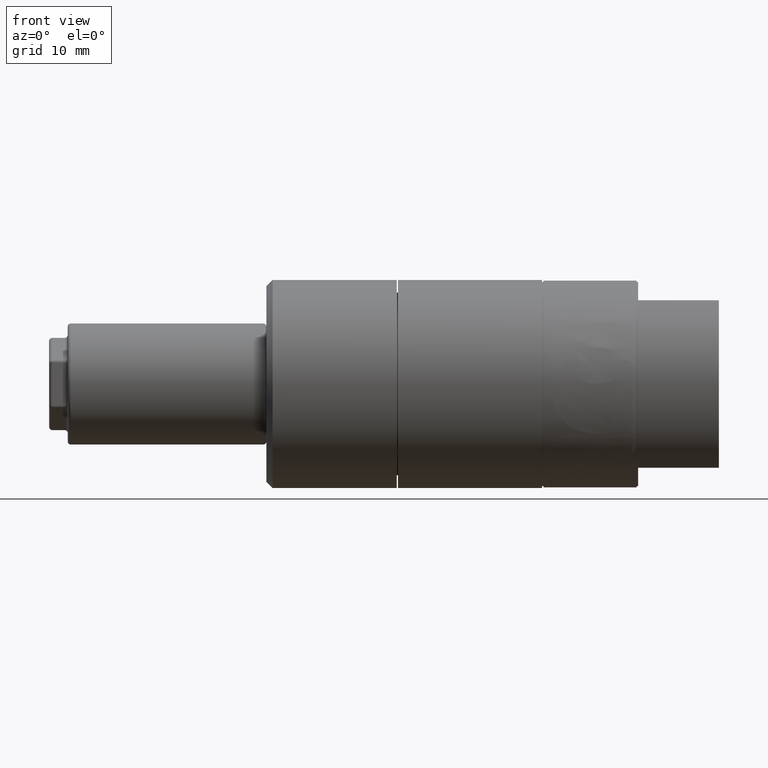
[diagram: clean part render]
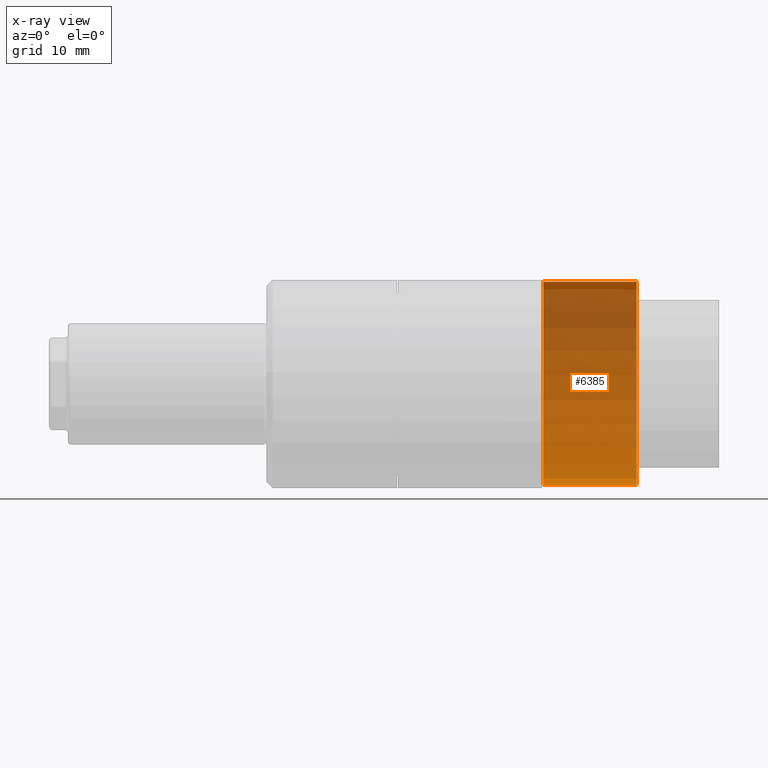
[diagram: x-ray — body ghosted, one internal face saturated and labeled with its STEP entity id]
A machine part, front view, then the same camera in x-ray: the body is ghosted and one INTERNAL B-rep face — a face not visible from any outside direction — is saturated and labeled: STEP entity #6385.
In plain terms, the highlighted cylindrical surface (partial cylindrical patch) has radius 16.45 mm, axis along (1, 0, 0).
Its self-contained STEP definition (entity closure, byte-faithful):
#176 = DIRECTION ( 'NONE',  ( 0.0000000000000000000, -2.220446049250315100E-016, 1.000000000000000000 ) ) ;
#233 = CARTESIAN_POINT ( 'NONE',  ( -13.61793346778194000, 2.350327401280844600, -16.28123033148259700 ) ) ;
#498 = ORIENTED_EDGE ( 'NONE', *, *, #17326, .T. ) ;
#663 = CARTESIAN_POINT ( 'NONE',  ( -13.25000000000000000, 2.844111681411965400, -16.20226924673380300 ) ) ;
#1414 = EDGE_CURVE ( 'NONE', #11359, #15761, #16953, .T. ) ;
#2146 = CARTESIAN_POINT ( 'NONE',  ( -28.25000000000000000, 2.844111681411965400, -16.20226924673380300 ) ) ;
#2207 = AXIS2_PLACEMENT_3D ( 'NONE', #11040, #18068, #15221 ) ;
#2396 = CARTESIAN_POINT ( 'NONE',  ( -27.75000000000000000, 2.350327401280844600, -16.28123033148260000 ) ) ;
#2786 = CARTESIAN_POINT ( 'NONE',  ( -28.25000000000000000, -3.652633751016768000E-015, 16.44999999999999900 ) ) ;
#2927 = CARTESIAN_POINT ( 'NONE',  ( -13.48878902046023700, 2.403953160145684300, -16.27365995935596400 ) ) ;
#3117 = VERTEX_POINT ( 'NONE', #663 ) ;
#3388 = ORIENTED_EDGE ( 'NONE', *, *, #1414, .T. ) ;
#3477 = EDGE_CURVE ( 'NONE', #17809, #3117, #13429, .T. ) ;
#3595 = CARTESIAN_POINT ( 'NONE',  ( -28.25000000000000000, 2.844111681411965400, -16.20226924673380300 ) ) ;
#3665 = CARTESIAN_POINT ( 'NONE',  ( -28.25000000000000000, -3.652633751016768000E-015, 16.44999999999999900 ) ) ;
#4829 = DIRECTION ( 'NONE',  ( -1.000000000000000000, 0.0000000000000000000, 0.0000000000000000000 ) ) ;
#4936 = CARTESIAN_POINT ( 'NONE',  ( -28.25000000000000000, 2.714034696074173200, -16.22510268246112700 ) ) ;
#6385 = ADVANCED_FACE ( 'NONE', ( #15734 ), #7539, .F. ) ;
#7164 = CARTESIAN_POINT ( 'NONE',  ( -13.75000000000000000, 2.350327401280844600, -16.28123033148260000 ) ) ;
#7227 = EDGE_CURVE ( 'NONE', #8148, #11359, #12858, .T. ) ;
#7298 = AXIS2_PLACEMENT_3D ( 'NONE', #9082, #4829, #13145 ) ;
#7539 = CYLINDRICAL_SURFACE ( 'NONE', #12899, 16.44999999999999900 ) ;
#7762 = B_SPLINE_CURVE_WITH_KNOTS ( 'NONE', 3,
 ( #7164, #233, #2927, #17561, #10199, #16110 ),
 .UNSPECIFIED., .F., .F.,
 ( 4, 2, 4 ),
 ( 0.0000000000000000000, 0.0003905762152710169000, 0.0007811524305420337900 ),
 .UNSPECIFIED. ) ;
#8003 = ORIENTED_EDGE ( 'NONE', *, *, #9784, .T. ) ;
#8025 = VECTOR ( 'NONE', #13711, 1000.000000000000000 ) ;
#8148 = VERTEX_POINT ( 'NONE', #2786 ) ;
#8794 = ORIENTED_EDGE ( 'NONE', *, *, #3477, .F. ) ;
#8869 = CARTESIAN_POINT ( 'NONE',  ( -13.25000000000000000, -3.652633751016768000E-015, 16.44999999999999900 ) ) ;
#9082 = CARTESIAN_POINT ( 'NONE',  ( -28.25000000000000000, 0.0000000000000000000, 0.0000000000000000000 ) ) ;
#9199 = CARTESIAN_POINT ( 'NONE',  ( -28.19588005073979200, 2.586518506661684000, -16.24564352438177300 ) ) ;
#9380 = CARTESIAN_POINT ( 'NONE',  ( -27.88206642446942100, 2.350327401280845100, -16.28123033148260000 ) ) ;
#9784 = EDGE_CURVE ( 'NONE', #14353, #3117, #7762, .T. ) ;
#10199 = CARTESIAN_POINT ( 'NONE',  ( -13.24999999999999800, 2.714034221239672600, -16.22510276581255800 ) ) ;
#10942 = EDGE_LOOP ( 'NONE', ( #14995, #13207, #3388, #498, #8003, #8794 ) ) ;
#11040 = CARTESIAN_POINT ( 'NONE',  ( -13.25000000000000000, 0.0000000000000000000, 0.0000000000000000000 ) ) ;
#11088 = LINE ( 'NONE', #14770, #14717 ) ;
#11359 = VERTEX_POINT ( 'NONE', #2146 ) ;
#11595 = CARTESIAN_POINT ( 'NONE',  ( -13.75000000000000000, 2.350327401280844600, -16.28123033148260000 ) ) ;
#11603 = CARTESIAN_POINT ( 'NONE',  ( -28.25000000000000000, 0.0000000000000000000, 0.0000000000000000000 ) ) ;
#12345 = CARTESIAN_POINT ( 'NONE',  ( -28.01152991088139600, 2.404138094501159000, -16.27363301568396600 ) ) ;
#12858 = CIRCLE ( 'NONE', #7298, 16.44999999999999900 ) ;
#12899 = AXIS2_PLACEMENT_3D ( 'NONE', #11603, #16055, #176 ) ;
#13078 = EDGE_CURVE ( 'NONE', #8148, #17809, #17339, .T. ) ;
#13145 = DIRECTION ( 'NONE',  ( 0.0000000000000000000, 2.220446049250315100E-016, -1.000000000000000000 ) ) ;
#13207 = ORIENTED_EDGE ( 'NONE', *, *, #7227, .T. ) ;
#13429 = CIRCLE ( 'NONE', #2207, 16.44999999999999900 ) ;
#13711 = DIRECTION ( 'NONE',  ( 1.000000000000000000, 0.0000000000000000000, 0.0000000000000000000 ) ) ;
#14353 = VERTEX_POINT ( 'NONE', #11595 ) ;
#14717 = VECTOR ( 'NONE', #14835, 1000.000000000000000 ) ;
#14770 = CARTESIAN_POINT ( 'NONE',  ( -28.25000000000000000, 2.350327401280844600, -16.28123033148260000 ) ) ;
#14835 = DIRECTION ( 'NONE',  ( 1.000000000000000000, 0.0000000000000000000, 0.0000000000000000000 ) ) ;
#14995 = ORIENTED_EDGE ( 'NONE', *, *, #13078, .F. ) ;
#15027 = CARTESIAN_POINT ( 'NONE',  ( -27.75000000000000000, 2.350327401280844600, -16.28123033148260000 ) ) ;
#15221 = DIRECTION ( 'NONE',  ( 0.0000000000000000000, 2.220446049250315100E-016, -1.000000000000000000 ) ) ;
#15734 = FACE_OUTER_BOUND ( 'NONE', #10942, .T. ) ;
#15761 = VERTEX_POINT ( 'NONE', #2396 ) ;
#16055 = DIRECTION ( 'NONE',  ( 1.000000000000000000, 0.0000000000000000000, 0.0000000000000000000 ) ) ;
#16110 = CARTESIAN_POINT ( 'NONE',  ( -13.25000000000000000, 2.844111681411965400, -16.20226924673380300 ) ) ;
#16953 = B_SPLINE_CURVE_WITH_KNOTS ( 'NONE', 3,
 ( #3595, #4936, #9199, #12345, #9380, #15027 ),
 .UNSPECIFIED., .F., .F.,
 ( 4, 2, 4 ),
 ( 0.0000000000000000000, 0.0003905766597208082100, 0.0007811533194416164200 ),
 .UNSPECIFIED. ) ;
#17326 = EDGE_CURVE ( 'NONE', #15761, #14353, #11088, .T. ) ;
#17339 = LINE ( 'NONE', #3665, #8025 ) ;
#17561 = CARTESIAN_POINT ( 'NONE',  ( -13.30430738312117000, 2.586202844257747400, -16.24569340216886100 ) ) ;
#17809 = VERTEX_POINT ( 'NONE', #8869 ) ;
#18068 = DIRECTION ( 'NONE',  ( -1.000000000000000000, 0.0000000000000000000, 0.0000000000000000000 ) ) ;